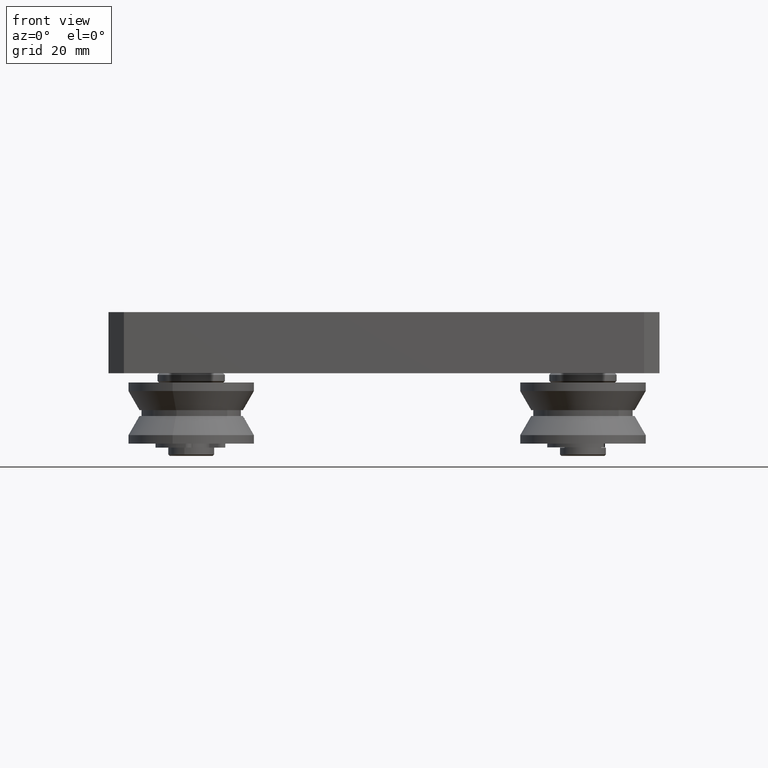
[diagram: clean part render]
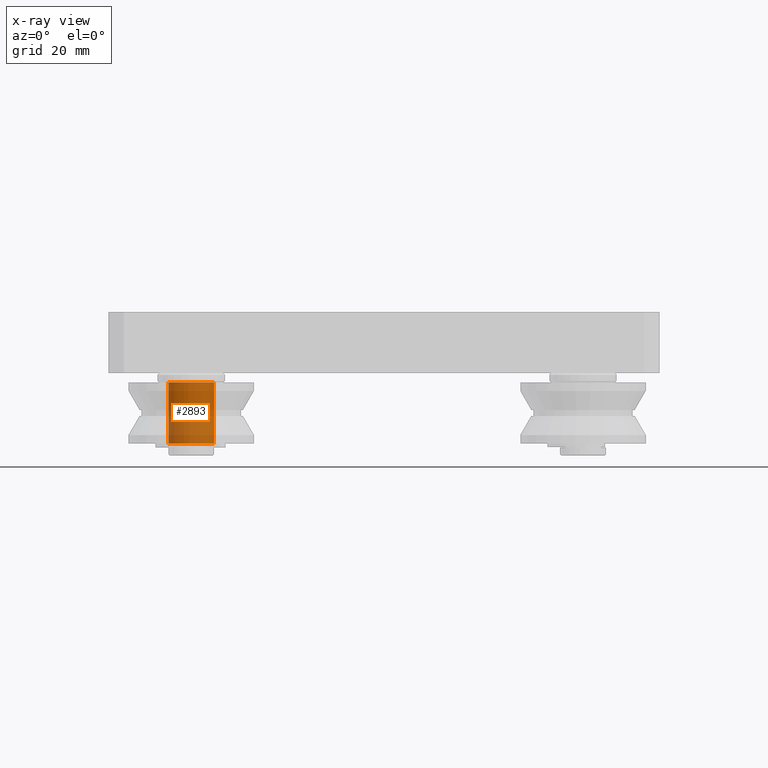
[diagram: x-ray — body ghosted, one internal face saturated and labeled with its STEP entity id]
A machine part, front view, then the same camera in x-ray: the body is ghosted and one INTERNAL B-rep face — a face not visible from any outside direction — is saturated and labeled: STEP entity #2893.
In plain terms, the highlighted cylindrical surface (bore or boss wall) has radius 7.5 mm, axis along (0, 0, 1).
Its self-contained STEP definition (entity closure, byte-faithful):
#215=CYLINDRICAL_SURFACE('',#3396,7.5);
#358=CIRCLE('',#3363,7.5);
#374=CIRCLE('',#3395,7.5);
#554=FACE_OUTER_BOUND('',#773,.T.);
#773=EDGE_LOOP('',(#2424,#2425,#2426,#2427));
#992=LINE('',#5023,#1205);
#1205=VECTOR('',#4165,7.5);
#1406=VERTEX_POINT('',#4963);
#1422=VERTEX_POINT('',#5020);
#1740=EDGE_CURVE('',#1406,#1406,#358,.T.);
#1765=EDGE_CURVE('',#1422,#1422,#374,.T.);
#1766=EDGE_CURVE('',#1422,#1406,#992,.T.);
#2424=ORIENTED_EDGE('',*,*,#1765,.T.);
#2425=ORIENTED_EDGE('',*,*,#1766,.T.);
#2426=ORIENTED_EDGE('',*,*,#1740,.F.);
#2427=ORIENTED_EDGE('',*,*,#1766,.F.);
#2893=ADVANCED_FACE('',(#554),#215,.F.);
#3363=AXIS2_PLACEMENT_3D('',#4964,#4088,#4089);
#3395=AXIS2_PLACEMENT_3D('',#5021,#4161,#4162);
#3396=AXIS2_PLACEMENT_3D('',#5022,#4163,#4164);
#4088=DIRECTION('center_axis',(1.,0.,0.));
#4089=DIRECTION('ref_axis',(0.,1.,0.));
#4161=DIRECTION('center_axis',(1.,0.,0.));
#4162=DIRECTION('ref_axis',(0.,1.,0.));
#4163=DIRECTION('center_axis',(1.,0.,0.));
#4164=DIRECTION('ref_axis',(0.,1.,0.));
#4165=DIRECTION('',(-1.,0.,0.));
#4963=CARTESIAN_POINT('',(-10.,-7.5,-9.18485099360515E-16));
#4964=CARTESIAN_POINT('Origin',(-10.,0.,0.));
#5020=CARTESIAN_POINT('',(10.,-7.5,-9.18485099360515E-16));
#5021=CARTESIAN_POINT('Origin',(10.,0.,0.));
#5022=CARTESIAN_POINT('Origin',(-2.22044604925031E-15,0.,0.));
#5023=CARTESIAN_POINT('',(-2.22044604925031E-15,-7.5,-9.18485099360515E-16));